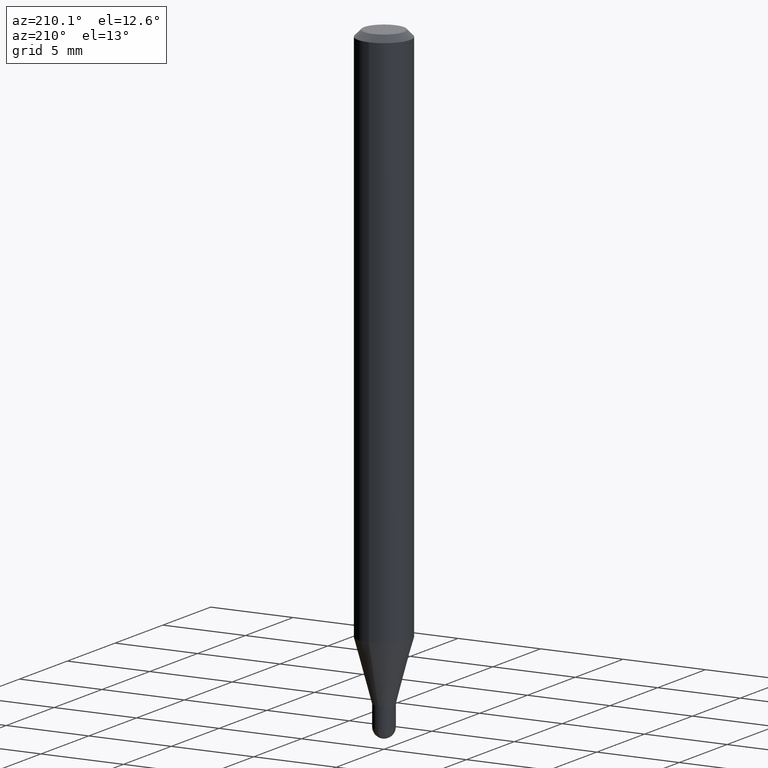
[diagram: clean part render]
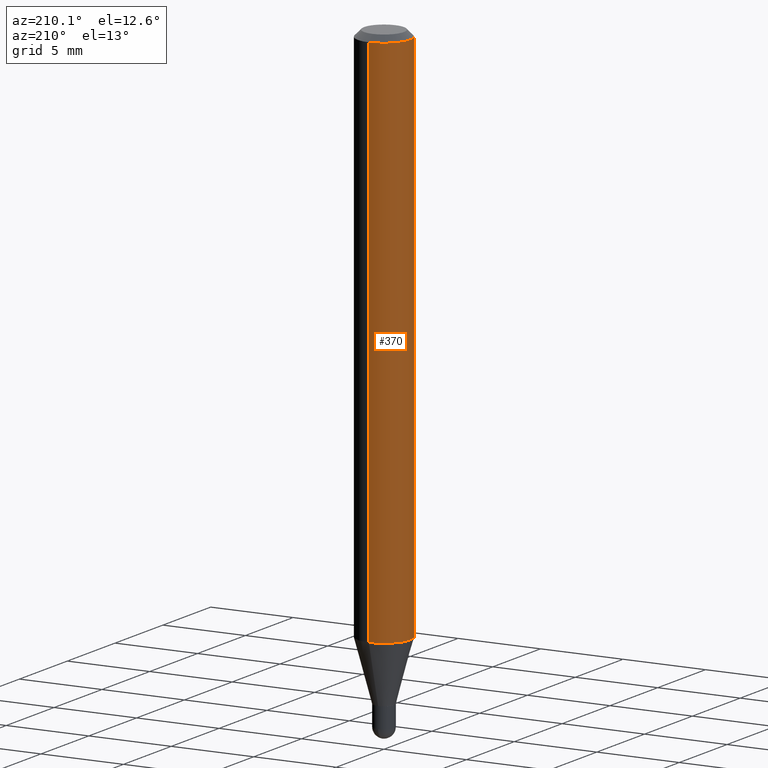
[diagram: same view with one face highlighted and labeled with its STEP entity id]
A machine part, auxiliary view. The second image highlights one B-rep face of the part: STEP entity #370.
In plain terms, the highlighted cylindrical surface (edge-blend (fillet) strip) has radius 1.5875 mm, axis along (-0, 0, 1).
Its self-contained STEP definition (entity closure, byte-faithful):
#24 = ORIENTED_EDGE ( 'NONE', *, *, #30, .T. ) ;
#30 = EDGE_CURVE ( 'NONE', #446, #481, #269, .T. ) ;
#44 = DIRECTION ( 'NONE',  ( -2.445465998314857821E-29, 3.491485359873199197E-15, 1.000000000000000000 ) ) ;
#63 = ORIENTED_EDGE ( 'NONE', *, *, #87, .T. ) ;
#69 = CIRCLE ( 'NONE', #398, 0.06250000000000000000 ) ;
#72 = CYLINDRICAL_SURFACE ( 'NONE', #75, 0.06250000000000000000 ) ;
#75 = AXIS2_PLACEMENT_3D ( 'NONE', #410, #384, #189 ) ;
#87 = EDGE_CURVE ( 'NONE', #287, #446, #186, .T. ) ;
#88 = CARTESIAN_POINT ( 'NONE',  ( 4.440892098500937762E-16, 0.06249999999999550360, -1.284682069312387709 ) ) ;
#93 = VERTEX_POINT ( 'NONE', #420 ) ;
#97 = CARTESIAN_POINT ( 'NONE',  ( 3.668198997472288816E-31, -5.237228039809801828E-17, -0.01500000000000000812 ) ) ;
#98 = EDGE_CURVE ( 'NONE', #287, #93, #181, .T. ) ;
#113 = VECTOR ( 'NONE', #44, 39.37007874015748143 ) ;
#132 = DIRECTION ( 'NONE',  ( -6.982962677686265922E-15, -1.000000000000000000, 3.483106191921935554E-15 ) ) ;
#134 = EDGE_CURVE ( 'NONE', #93, #481, #69, .T. ) ;
#171 = DIRECTION ( 'NONE',  ( -2.445465998314857821E-29, 3.491485359873199197E-15, 1.000000000000000000 ) ) ;
#181 = LINE ( 'NONE', #459, #386 ) ;
#182 = ORIENTED_EDGE ( 'NONE', *, *, #98, .F. ) ;
#186 = CIRCLE ( 'NONE', #505, 0.06250000000000000000 ) ;
#189 = DIRECTION ( 'NONE',  ( -6.982962677686265922E-15, -1.000000000000000000, 3.491485359873198803E-15 ) ) ;
#196 = CARTESIAN_POINT ( 'NONE',  ( -4.364351673553603615E-16, -0.06250000000000451028, -1.284682069312387043 ) ) ;
#206 = CARTESIAN_POINT ( 'NONE',  ( 3.141646319148214491E-29, -4.485448637095806796E-15, -1.284682069312387265 ) ) ;
#222 = DIRECTION ( 'NONE',  ( -2.445465998314857821E-29, 3.491485359873199197E-15, 1.000000000000000000 ) ) ;
#226 = FACE_OUTER_BOUND ( 'NONE', #292, .T. ) ;
#246 = CARTESIAN_POINT ( 'NONE',  ( -4.364351673553916201E-16, -0.06250000000000000000, 2.182178349920749252E-16 ) ) ;
#254 = DIRECTION ( 'NONE',  ( -2.445465998314857821E-29, 3.491485359873199197E-15, 1.000000000000000000 ) ) ;
#269 = LINE ( 'NONE', #246, #113 ) ;
#287 = VERTEX_POINT ( 'NONE', #88 ) ;
#292 = EDGE_LOOP ( 'NONE', ( #182, #63, #24, #484 ) ) ;
#370 = ADVANCED_FACE ( 'NONE', ( #226 ), #72, .T. ) ;
#384 = DIRECTION ( 'NONE',  ( -2.445465998314857821E-29, 3.491485359873199197E-15, 1.000000000000000000 ) ) ;
#386 = VECTOR ( 'NONE', #222, 39.37007874015748143 ) ;
#398 = AXIS2_PLACEMENT_3D ( 'NONE', #97, #254, #132 ) ;
#404 = DIRECTION ( 'NONE',  ( -6.982962677686265922E-15, -1.000000000000000000, 4.370956789862821150E-15 ) ) ;
#410 = CARTESIAN_POINT ( 'NONE',  ( 0.000000000000000000, 0.000000000000000000, 0.000000000000000000 ) ) ;
#420 = CARTESIAN_POINT ( 'NONE',  ( 4.440892098500941706E-16, 0.06249999999999995143, -0.01500000000000022669 ) ) ;
#446 = VERTEX_POINT ( 'NONE', #196 ) ;
#455 = CARTESIAN_POINT ( 'NONE',  ( -4.364351673553912750E-16, -0.06250000000000005551, -0.01499999999999979128 ) ) ;
#459 = CARTESIAN_POINT ( 'NONE',  ( 4.440892098500625669E-16, 0.06250000000000000000, -2.182178349920749252E-16 ) ) ;
#481 = VERTEX_POINT ( 'NONE', #455 ) ;
#484 = ORIENTED_EDGE ( 'NONE', *, *, #134, .F. ) ;
#505 = AXIS2_PLACEMENT_3D ( 'NONE', #206, #171, #404 ) ;